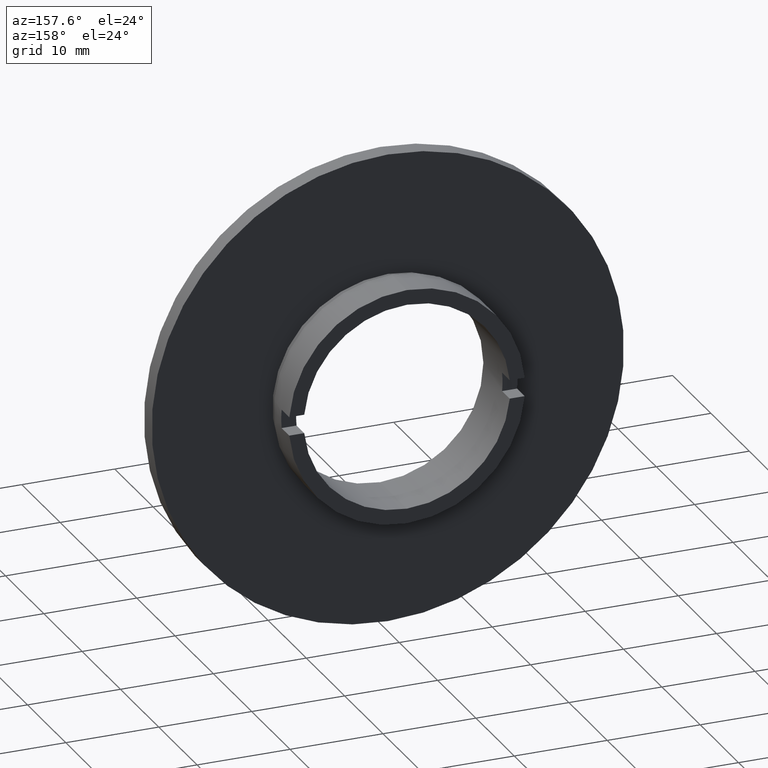
[diagram: clean part render]
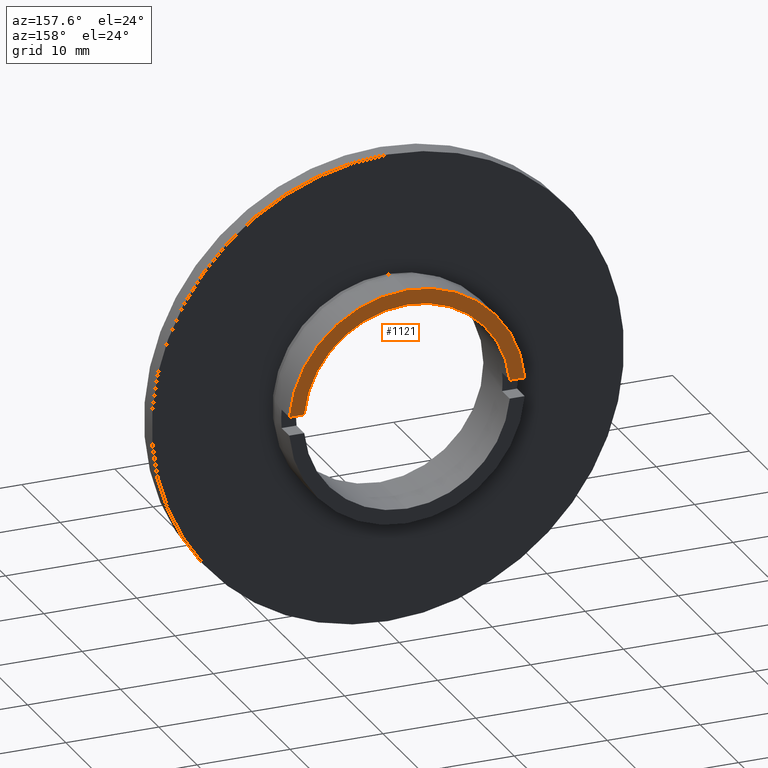
[diagram: same view with one face highlighted and labeled with its STEP entity id]
A machine part, auxiliary view. The second image highlights one B-rep face of the part: STEP entity #1121.
In plain terms, the highlighted planar face has unit normal (-0, 1, 0).
Its self-contained STEP definition (entity closure, byte-faithful):
#61 = CARTESIAN_POINT ( 'NONE',  ( 0.0000000000000000000, 12.00000000000000000, 0.0000000000000000000 ) ) ;
#70 = DIRECTION ( 'NONE',  ( -0.0000000000000000000, 1.000000000000000000, -0.0000000000000000000 ) ) ;
#72 = DIRECTION ( 'NONE',  ( 0.0000000000000000000, 0.0000000000000000000, 1.000000000000000000 ) ) ;
#74 = DIRECTION ( 'NONE',  ( 0.0000000000000000000, 0.0000000000000000000, 1.000000000000000000 ) ) ;
#103 = DIRECTION ( 'NONE',  ( -0.0000000000000000000, 1.000000000000000000, 0.0000000000000000000 ) ) ;
#142 = DIRECTION ( 'NONE',  ( 1.000000000000000000, 0.0000000000000000000, 0.0000000000000000000 ) ) ;
#156 = DIRECTION ( 'NONE',  ( 0.0000000000000000000, 0.0000000000000000000, 1.000000000000000000 ) ) ;
#174 = VERTEX_POINT ( 'NONE', #556 ) ;
#181 = AXIS2_PLACEMENT_3D ( 'NONE', #61, #70, #72 ) ;
#189 = ORIENTED_EDGE ( 'NONE', *, *, #937, .T. ) ;
#196 = CARTESIAN_POINT ( 'NONE',  ( -11.09999999999999800, 12.00000000000000000, 0.0000000000000000000 ) ) ;
#248 = AXIS2_PLACEMENT_3D ( 'NONE', #1334, #1266, #868 ) ;
#267 = CARTESIAN_POINT ( 'NONE',  ( 11.05486318323297800, 12.00000000000000000, 1.000000000000001600 ) ) ;
#300 = ORIENTED_EDGE ( 'NONE', *, *, #872, .F. ) ;
#328 = VERTEX_POINT ( 'NONE', #1169 ) ;
#334 = EDGE_CURVE ( 'NONE', #328, #372, #989, .T. ) ;
#345 = CARTESIAN_POINT ( 'NONE',  ( 0.0000000000000000000, 12.00000000000000000, 11.09999999999999800 ) ) ;
#359 = CARTESIAN_POINT ( 'NONE',  ( 0.0000000000000000000, 12.00000000000000000, 0.0000000000000000000 ) ) ;
#372 = VERTEX_POINT ( 'NONE', #1157 ) ;
#382 = ORIENTED_EDGE ( 'NONE', *, *, #585, .T. ) ;
#394 = EDGE_LOOP ( 'NONE', ( #1168, #382, #189, #300, #871, #701 ) ) ;
#401 = CARTESIAN_POINT ( 'NONE',  ( 12.66056870760551300, 12.00000000000000000, 1.000000000000001600 ) ) ;
#416 = FACE_OUTER_BOUND ( 'NONE', #394, .T. ) ;
#421 = AXIS2_PLACEMENT_3D ( 'NONE', #359, #1013, #156 ) ;
#443 = CIRCLE ( 'NONE', #421, 11.09999999999999800 ) ;
#516 = VECTOR ( 'NONE', #142, 1000.000000000000000 ) ;
#556 = CARTESIAN_POINT ( 'NONE',  ( 0.0000000000000000000, 12.00000000000000000, 12.69999999999999800 ) ) ;
#585 = EDGE_CURVE ( 'NONE', #328, #174, #1084, .T. ) ;
#589 = DIRECTION ( 'NONE',  ( -0.0000000000000000000, 1.000000000000000000, -0.0000000000000000000 ) ) ;
#617 = EDGE_CURVE ( 'NONE', #759, #1219, #443, .T. ) ;
#658 = CIRCLE ( 'NONE', #1113, 12.69999999999999800 ) ;
#660 = DIRECTION ( 'NONE',  ( 0.0000000000000000000, 0.0000000000000000000, 1.000000000000000000 ) ) ;
#661 = CARTESIAN_POINT ( 'NONE',  ( 0.0000000000000000000, 12.00000000000000000, 0.0000000000000000000 ) ) ;
#670 = CARTESIAN_POINT ( 'NONE',  ( -11.09999999999999800, 12.00000000000000000, 1.000000000000001600 ) ) ;
#688 = LINE ( 'NONE', #670, #901 ) ;
#701 = ORIENTED_EDGE ( 'NONE', *, *, #1147, .F. ) ;
#759 = VERTEX_POINT ( 'NONE', #345 ) ;
#868 = DIRECTION ( 'NONE',  ( 0.0000000000000000000, 0.0000000000000000000, 1.000000000000000000 ) ) ;
#871 = ORIENTED_EDGE ( 'NONE', *, *, #617, .F. ) ;
#872 = EDGE_CURVE ( 'NONE', #1219, #915, #688, .T. ) ;
#898 = DIRECTION ( 'NONE',  ( 1.000000000000000000, 0.0000000000000000000, 0.0000000000000000000 ) ) ;
#901 = VECTOR ( 'NONE', #898, 1000.000000000000000 ) ;
#915 = VERTEX_POINT ( 'NONE', #401 ) ;
#937 = EDGE_CURVE ( 'NONE', #174, #915, #658, .T. ) ;
#989 = LINE ( 'NONE', #995, #516 ) ;
#995 = CARTESIAN_POINT ( 'NONE',  ( -11.09999999999999800, 12.00000000000000000, 1.000000000000001600 ) ) ;
#1013 = DIRECTION ( 'NONE',  ( -0.0000000000000000000, 1.000000000000000000, -0.0000000000000000000 ) ) ;
#1084 = CIRCLE ( 'NONE', #248, 12.69999999999999800 ) ;
#1113 = AXIS2_PLACEMENT_3D ( 'NONE', #661, #589, #660 ) ;
#1118 = CIRCLE ( 'NONE', #181, 11.09999999999999800 ) ;
#1121 = ADVANCED_FACE ( 'NONE', ( #416 ), #1299, .T. ) ;
#1147 = EDGE_CURVE ( 'NONE', #372, #759, #1118, .T. ) ;
#1157 = CARTESIAN_POINT ( 'NONE',  ( -11.05486318323297800, 12.00000000000000000, 1.000000000000001600 ) ) ;
#1168 = ORIENTED_EDGE ( 'NONE', *, *, #334, .F. ) ;
#1169 = CARTESIAN_POINT ( 'NONE',  ( -12.66056870760551300, 12.00000000000000000, 1.000000000000001600 ) ) ;
#1219 = VERTEX_POINT ( 'NONE', #267 ) ;
#1266 = DIRECTION ( 'NONE',  ( -0.0000000000000000000, 1.000000000000000000, -0.0000000000000000000 ) ) ;
#1295 = AXIS2_PLACEMENT_3D ( 'NONE', #196, #103, #74 ) ;
#1299 = PLANE ( 'NONE',  #1295 ) ;
#1334 = CARTESIAN_POINT ( 'NONE',  ( 0.0000000000000000000, 12.00000000000000000, 0.0000000000000000000 ) ) ;